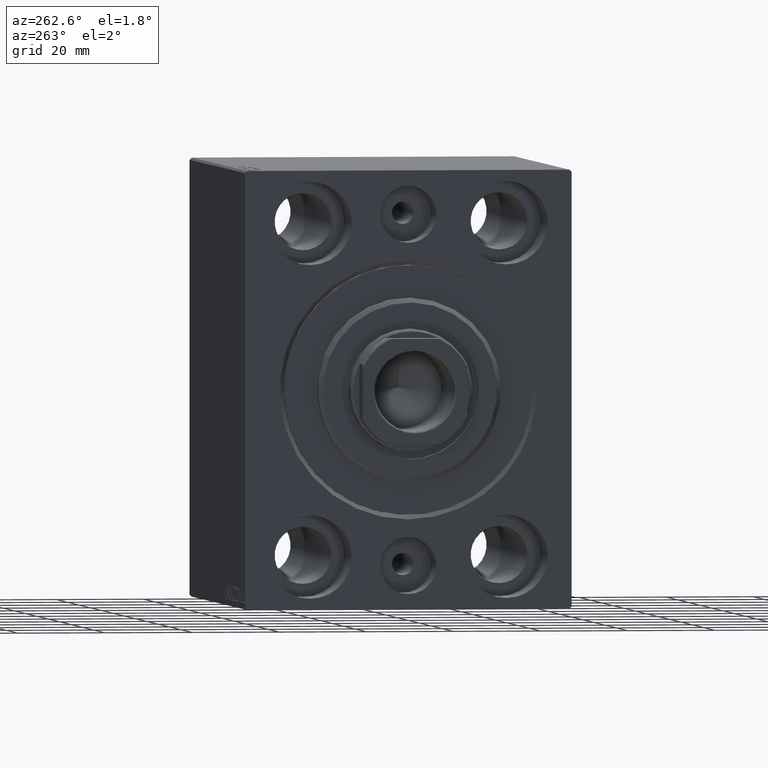
[diagram: clean part render]
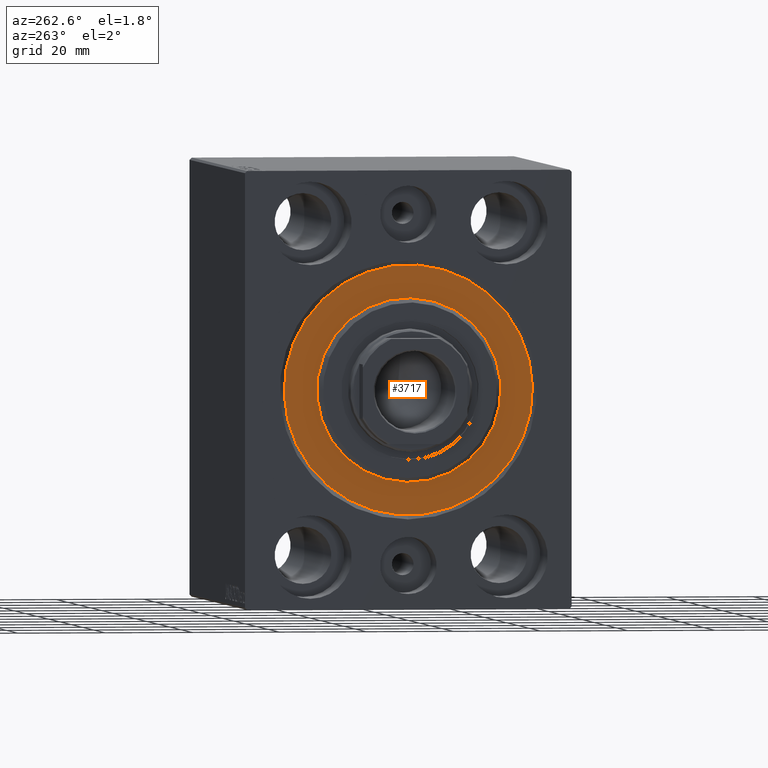
[diagram: same view with one face highlighted and labeled with its STEP entity id]
A machine part, auxiliary view. The second image highlights one B-rep face of the part: STEP entity #3717.
In plain terms, the highlighted planar face has unit normal (1, 0, -0).
Its self-contained STEP definition (entity closure, byte-faithful):
#1118 = PLANE ( 'NONE',  #24163 ) ;
#1253 = ORIENTED_EDGE ( 'NONE', *, *, #35789, .F. ) ;
#1550 = DIRECTION ( 'NONE',  ( -1.000000000000000000, 0.000000000000000000, 0.000000000000000000 ) ) ;
#1754 = CARTESIAN_POINT ( 'NONE',  ( 0.000000000000000000, 2.571758278209441661E-15, -21.00000000000000000 ) ) ;
#1940 = CIRCLE ( 'NONE', #30951, 28.50000000000000000 ) ;
#3592 = DIRECTION ( 'NONE',  ( 0.000000000000000000, 0.000000000000000000, 1.000000000000000000 ) ) ;
#3717 = ADVANCED_FACE ( 'NONE', ( #14406, #34796 ), #1118, .F. ) ;
#8600 = CARTESIAN_POINT ( 'NONE',  ( 0.000000000000000000, 0.000000000000000000, 0.000000000000000000 ) ) ;
#8614 = CARTESIAN_POINT ( 'NONE',  ( 0.000000000000000000, 0.000000000000000000, 0.000000000000000000 ) ) ;
#9973 = CIRCLE ( 'NONE', #34083, 28.50000000000000000 ) ;
#11061 = CARTESIAN_POINT ( 'NONE',  ( 0.000000000000000000, 0.000000000000000000, 0.000000000000000000 ) ) ;
#12654 = DIRECTION ( 'NONE',  ( -1.000000000000000000, 0.000000000000000000, 0.000000000000000000 ) ) ;
#13344 = VERTEX_POINT ( 'NONE', #1754 ) ;
#14406 = FACE_BOUND ( 'NONE', #20703, .T. ) ;
#14637 = VERTEX_POINT ( 'NONE', #36304 ) ;
#15446 = VERTEX_POINT ( 'NONE', #25912 ) ;
#15910 = DIRECTION ( 'NONE',  ( 0.000000000000000000, 0.000000000000000000, -1.000000000000000000 ) ) ;
#15955 = ORIENTED_EDGE ( 'NONE', *, *, #28935, .F. ) ;
#17336 = CIRCLE ( 'NONE', #18047, 21.00000000000000000 ) ;
#18047 = AXIS2_PLACEMENT_3D ( 'NONE', #8614, #18596, #28376 ) ;
#18596 = DIRECTION ( 'NONE',  ( 1.000000000000000000, -0.000000000000000000, 0.000000000000000000 ) ) ;
#18910 = EDGE_CURVE ( 'NONE', #13344, #35694, #17336, .T. ) ;
#19544 = EDGE_LOOP ( 'NONE', ( #37290, #15955 ) ) ;
#20703 = EDGE_LOOP ( 'NONE', ( #1253, #28122 ) ) ;
#21197 = AXIS2_PLACEMENT_3D ( 'NONE', #8600, #36079, #15910 ) ;
#24163 = AXIS2_PLACEMENT_3D ( 'NONE', #11061, #1550, #24822 ) ;
#24822 = DIRECTION ( 'NONE',  ( 0.000000000000000000, 0.000000000000000000, 1.000000000000000000 ) ) ;
#25912 = CARTESIAN_POINT ( 'NONE',  ( 0.000000000000000000, 0.000000000000000000, -28.50000000000000000 ) ) ;
#27312 = CARTESIAN_POINT ( 'NONE',  ( 0.000000000000000000, 0.000000000000000000, 0.000000000000000000 ) ) ;
#28122 = ORIENTED_EDGE ( 'NONE', *, *, #18910, .F. ) ;
#28376 = DIRECTION ( 'NONE',  ( 0.000000000000000000, 0.000000000000000000, -1.000000000000000000 ) ) ;
#28935 = EDGE_CURVE ( 'NONE', #14637, #15446, #1940, .T. ) ;
#29519 = CARTESIAN_POINT ( 'NONE',  ( 0.000000000000000000, 0.000000000000000000, 0.000000000000000000 ) ) ;
#30951 = AXIS2_PLACEMENT_3D ( 'NONE', #27312, #33959, #3592 ) ;
#31252 = CARTESIAN_POINT ( 'NONE',  ( 0.000000000000000000, 0.000000000000000000, 21.00000000000000000 ) ) ;
#33959 = DIRECTION ( 'NONE',  ( -1.000000000000000000, 0.000000000000000000, 0.000000000000000000 ) ) ;
#34083 = AXIS2_PLACEMENT_3D ( 'NONE', #29519, #12654, #42816 ) ;
#34796 = FACE_OUTER_BOUND ( 'NONE', #19544, .T. ) ;
#35694 = VERTEX_POINT ( 'NONE', #31252 ) ;
#35789 = EDGE_CURVE ( 'NONE', #35694, #13344, #37462, .T. ) ;
#36079 = DIRECTION ( 'NONE',  ( 1.000000000000000000, -0.000000000000000000, 0.000000000000000000 ) ) ;
#36304 = CARTESIAN_POINT ( 'NONE',  ( 0.000000000000000000, 3.490243377569956456E-15, 28.50000000000000000 ) ) ;
#37290 = ORIENTED_EDGE ( 'NONE', *, *, #40694, .F. ) ;
#37462 = CIRCLE ( 'NONE', #21197, 21.00000000000000000 ) ;
#40694 = EDGE_CURVE ( 'NONE', #15446, #14637, #9973, .T. ) ;
#42816 = DIRECTION ( 'NONE',  ( 0.000000000000000000, 0.000000000000000000, 1.000000000000000000 ) ) ;